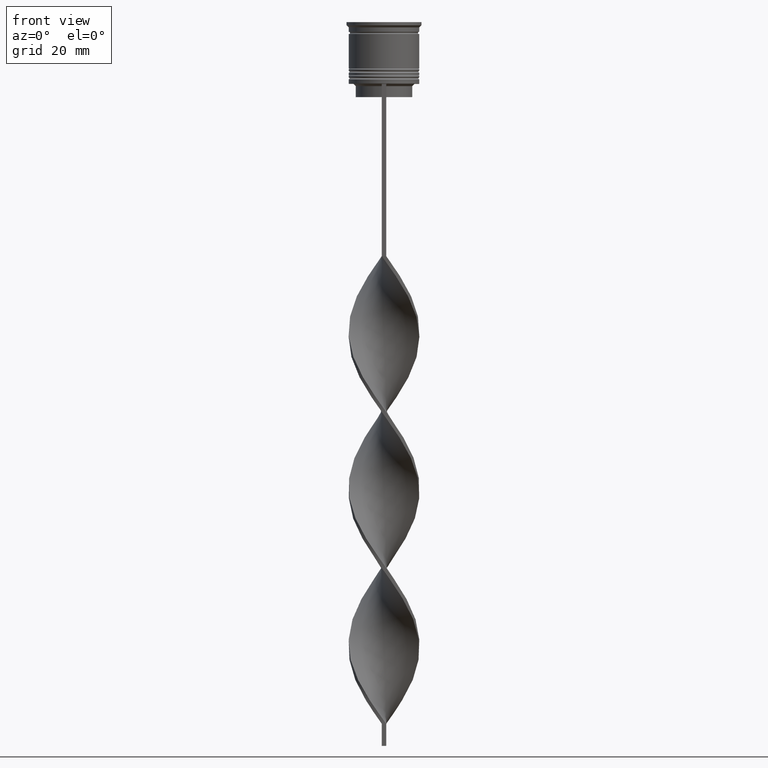
[diagram: clean part render]
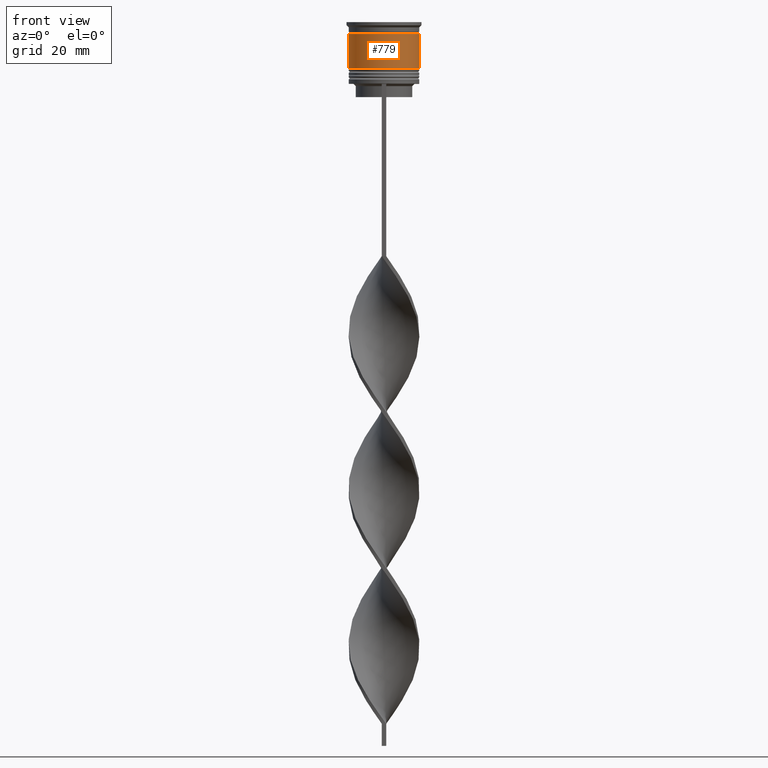
[diagram: same view with one face highlighted and labeled with its STEP entity id]
A machine part, front view. The second image highlights one B-rep face of the part: STEP entity #779.
In plain terms, the highlighted cylindrical surface (edge-blend (fillet) strip) has radius 8 mm, axis along (-0, -0, 1).
Its self-contained STEP definition (entity closure, byte-faithful):
#1 = VERTEX_POINT ( 'NONE', #2192 ) ;
#37 = LINE ( 'NONE', #362, #822 ) ;
#53 = VERTEX_POINT ( 'NONE', #330 ) ;
#91 = CIRCLE ( 'NONE', #3722, 8.000000000000001776 ) ;
#139 = VERTEX_POINT ( 'NONE', #1005 ) ;
#181 = LINE ( 'NONE', #420, #1613 ) ;
#330 = CARTESIAN_POINT ( 'NONE',  ( -8.000000000000001776, 9.797174393178827630E-16, -10.50000000000000000 ) ) ;
#342 = DIRECTION ( 'NONE',  ( -0.000000000000000000, -0.000000000000000000, 1.000000000000000000 ) ) ;
#345 = CIRCLE ( 'NONE', #2639, 7.999999999999998224 ) ;
#362 = CARTESIAN_POINT ( 'NONE',  ( 8.000000000000000000, 0.000000000000000000, 0.000000000000000000 ) ) ;
#420 = CARTESIAN_POINT ( 'NONE',  ( -8.000000000000000000, 9.797174393178825657E-16, 0.000000000000000000 ) ) ;
#478 = CARTESIAN_POINT ( 'NONE',  ( -7.999999999999998224, 9.797174393178823685E-16, -2.700000000000001510 ) ) ;
#570 = EDGE_CURVE ( 'NONE', #53, #1087, #181, .T. ) ;
#590 = ORIENTED_EDGE ( 'NONE', *, *, #621, .T. ) ;
#621 = EDGE_CURVE ( 'NONE', #53, #1, #91, .T. ) ;
#713 = CYLINDRICAL_SURFACE ( 'NONE', #1915, 8.000000000000000000 ) ;
#732 = ORIENTED_EDGE ( 'NONE', *, *, #570, .F. ) ;
#779 = ADVANCED_FACE ( 'NONE', ( #3304 ), #713, .T. ) ;
#822 = VECTOR ( 'NONE', #2907, 1000.000000000000000 ) ;
#844 = EDGE_LOOP ( 'NONE', ( #732, #590, #2083, #2485 ) ) ;
#939 = CARTESIAN_POINT ( 'NONE',  ( 0.000000000000000000, 0.000000000000000000, 0.000000000000000000 ) ) ;
#1005 = CARTESIAN_POINT ( 'NONE',  ( 7.999999999999998224, 0.000000000000000000, -2.700000000000001510 ) ) ;
#1087 = VERTEX_POINT ( 'NONE', #478 ) ;
#1348 = CARTESIAN_POINT ( 'NONE',  ( 0.000000000000000000, 0.000000000000000000, -10.50000000000000000 ) ) ;
#1507 = DIRECTION ( 'NONE',  ( 1.000000000000000000, 0.000000000000000000, 0.000000000000000000 ) ) ;
#1613 = VECTOR ( 'NONE', #2445, 1000.000000000000000 ) ;
#1623 = CARTESIAN_POINT ( 'NONE',  ( 0.000000000000000000, 0.000000000000000000, -2.700000000000001510 ) ) ;
#1634 = DIRECTION ( 'NONE',  ( -0.000000000000000000, -0.000000000000000000, 1.000000000000000000 ) ) ;
#1762 = EDGE_CURVE ( 'NONE', #1087, #139, #345, .T. ) ;
#1915 = AXIS2_PLACEMENT_3D ( 'NONE', #939, #342, #1507 ) ;
#2083 = ORIENTED_EDGE ( 'NONE', *, *, #3098, .T. ) ;
#2192 = CARTESIAN_POINT ( 'NONE',  ( 8.000000000000001776, 0.000000000000000000, -10.50000000000000000 ) ) ;
#2445 = DIRECTION ( 'NONE',  ( -0.000000000000000000, -0.000000000000000000, 1.000000000000000000 ) ) ;
#2485 = ORIENTED_EDGE ( 'NONE', *, *, #1762, .F. ) ;
#2520 = DIRECTION ( 'NONE',  ( 1.000000000000000000, 0.000000000000000000, 0.000000000000000000 ) ) ;
#2554 = DIRECTION ( 'NONE',  ( -0.000000000000000000, -0.000000000000000000, 1.000000000000000000 ) ) ;
#2639 = AXIS2_PLACEMENT_3D ( 'NONE', #1623, #2554, #2520 ) ;
#2740 = DIRECTION ( 'NONE',  ( 1.000000000000000000, 0.000000000000000000, 0.000000000000000000 ) ) ;
#2907 = DIRECTION ( 'NONE',  ( -0.000000000000000000, -0.000000000000000000, 1.000000000000000000 ) ) ;
#3098 = EDGE_CURVE ( 'NONE', #1, #139, #37, .T. ) ;
#3304 = FACE_OUTER_BOUND ( 'NONE', #844, .T. ) ;
#3722 = AXIS2_PLACEMENT_3D ( 'NONE', #1348, #1634, #2740 ) ;